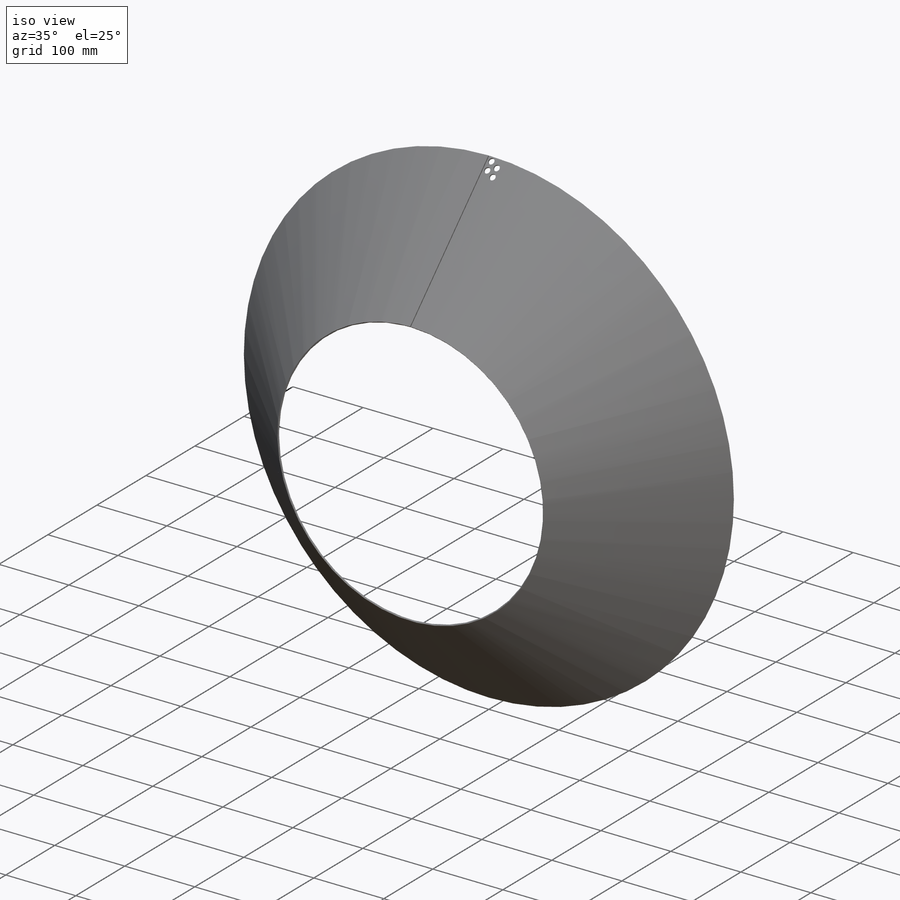
[diagram: iso view]
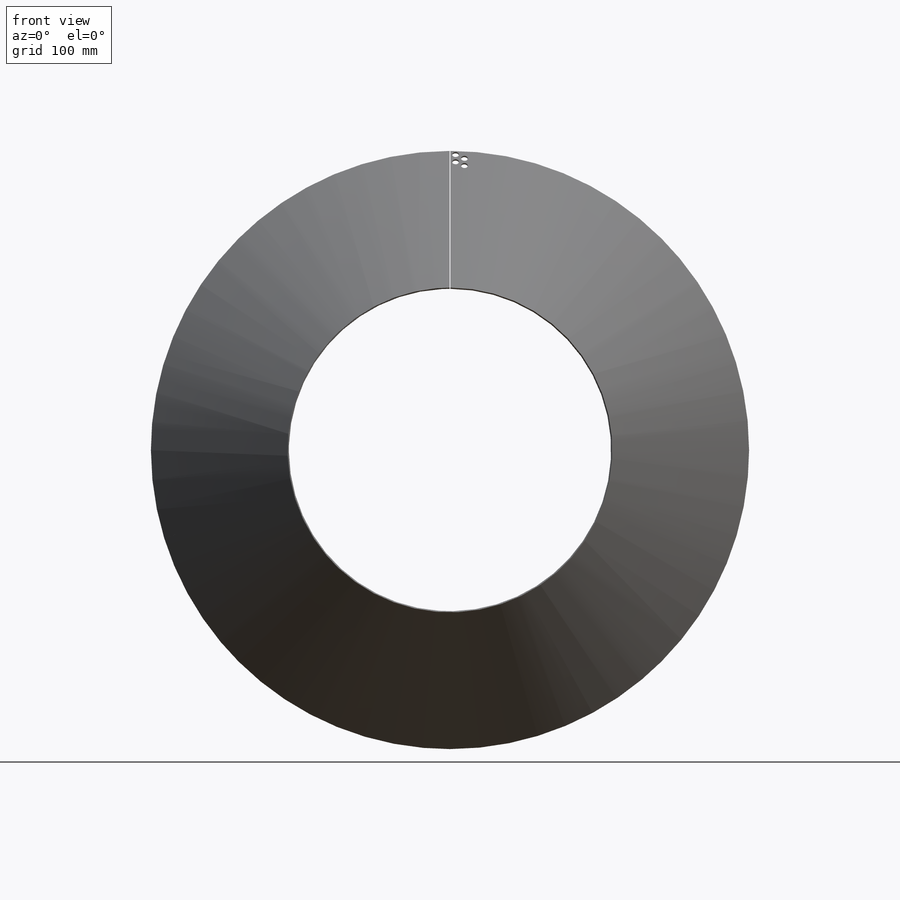
[diagram: front view]
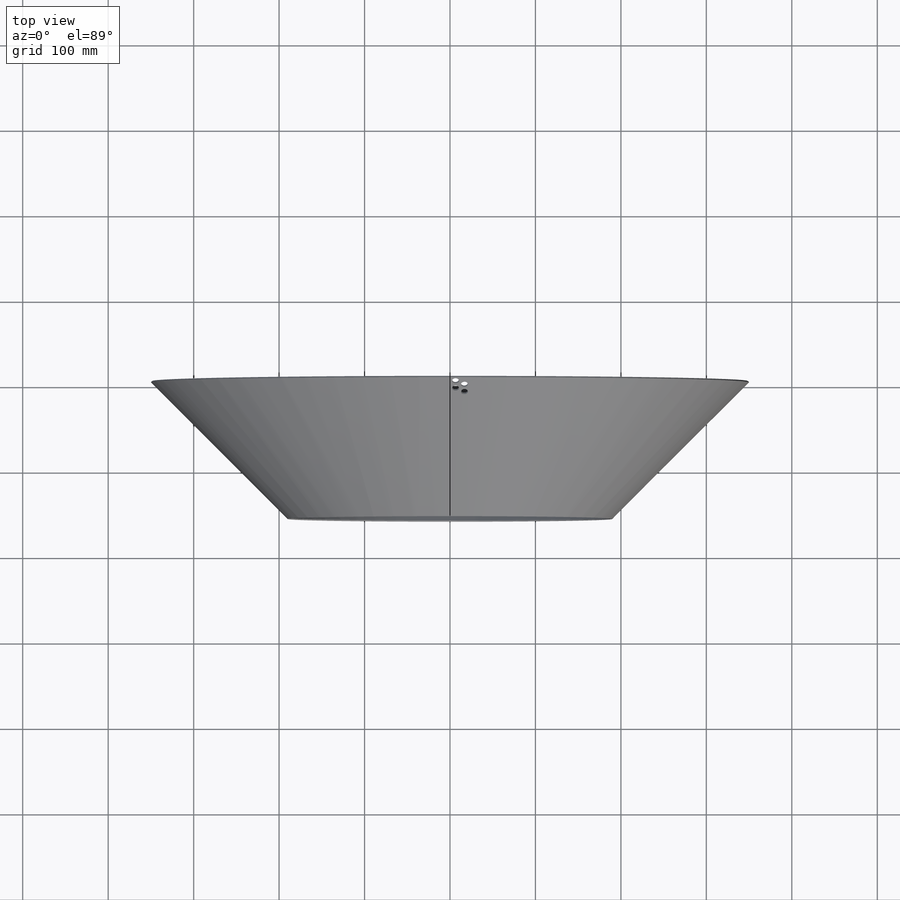
[diagram: top view]
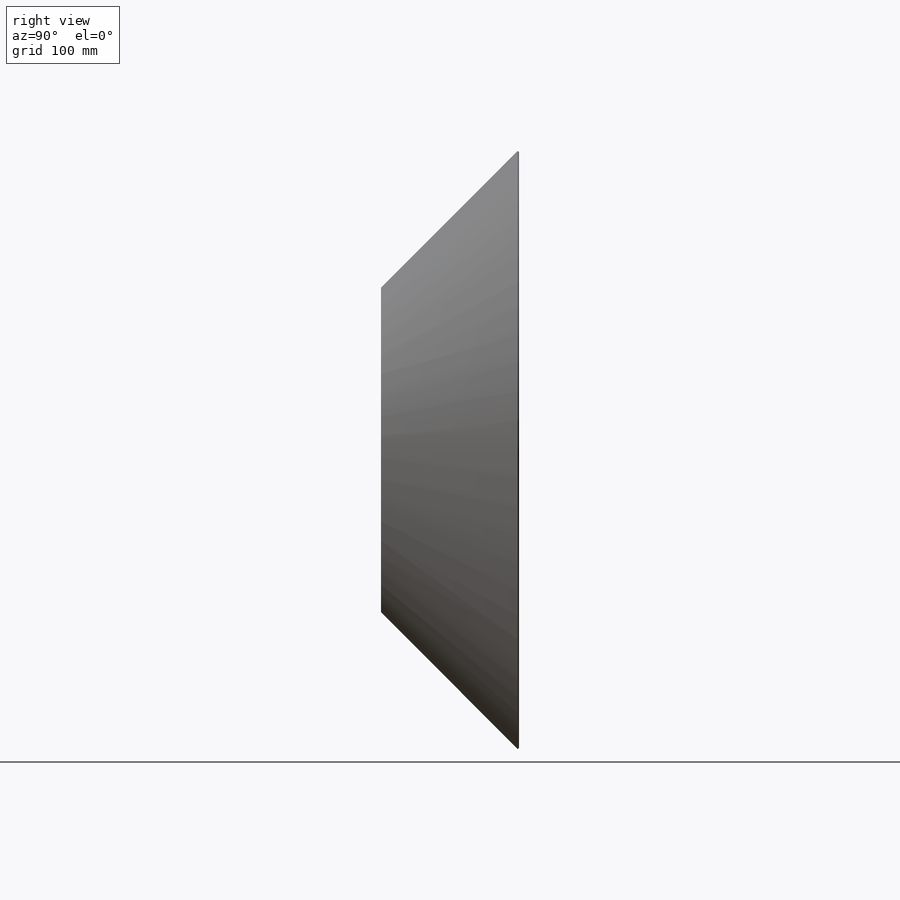
[diagram: right view]
SOLIDWORKS PART (.sldprt)
format: sldprt  version: not decoded by parser v0  size: 2,110,976 bytes
history: native  units: mm
features: sketch x8, plane x5, cut_extrude x2, material x1, sheet_metal_op x1, pattern_linear x1 + 2 further entries (+9 scaffold rows collapsed; 3 parser-record rows omitted)
feature tree (32):
  scaffold x9  (default folders/planes/origin — collapsed)
  material  "1.4571 (X6CrNiMoTi...)"
  plane  "Ebene vorne"
  plane  "Ebene oben"
  plane  "Ebene rechts"
  plane  "Ebene1"  Offset=160mm
  sketch  "Skizze1"  dims[c1.D1=~118.99922mm c1.D2=700.0mm c2.D1=1.0mm c2.D3=0.0001mm]
  sketch  "Skizze2"  dims[c1.D1=~118.99922mm c1.D2=380.0mm c2.D1=1.0mm c2.D3=0.0001mm]
  sheet_metal_op  "Blech1"
  plane  "Ebene3"
  sketch  "Skizze4"  dims[c1.D1=~406.970979mm c2.D1=~44.999946deg]
  parser-record x3  (decoder bookkeeping rows leaked as tree rows — omitted from the tree; the rows remain in map.json)
  sketch  "Skizze9"  dims[c1.D1=8.0mm c1.D4=~10.349682mm c1.D2=6.0mm c1.D3=6.0mm c2.D4=12.0mm c2.D3=6.0mm c2.D5=~4.587598mm]
  cut_extrude  "Schnitt-Linear austragen4"  [1 undecoded]
  pattern_linear  "Lineares Muster1"  Count1=40 Count2=24 Spacing1=12mm Spacing2=20.78mm
  "Abwicklung1"
  sketch  "Biegung-Linien1"
  sketch  "Rahmen1"
  sketch  "Skizze3"  dims[c1.D1=~168.820448mm c1.D2=~133.930599mm c2.D1=~794.381286mm c2.D2=~989.95262mm]
  sketch  "Skizze8"  dims[D1=8.0mm D2=6.0mm D3=6.0mm]
  cut_extrude  "Schnitt-Linear austragen3"  [1 undecoded]
  "Füllmuster4"
decode coverage: 7 of 12 modeling features carry decoded parameters; 2 rows unclassified (native names shown)
note: ~ marks probable driven/reference dimensions
note: 2 parameter values undecoded
note: suppression state not decoded; provenance and decode notes live in map.json
